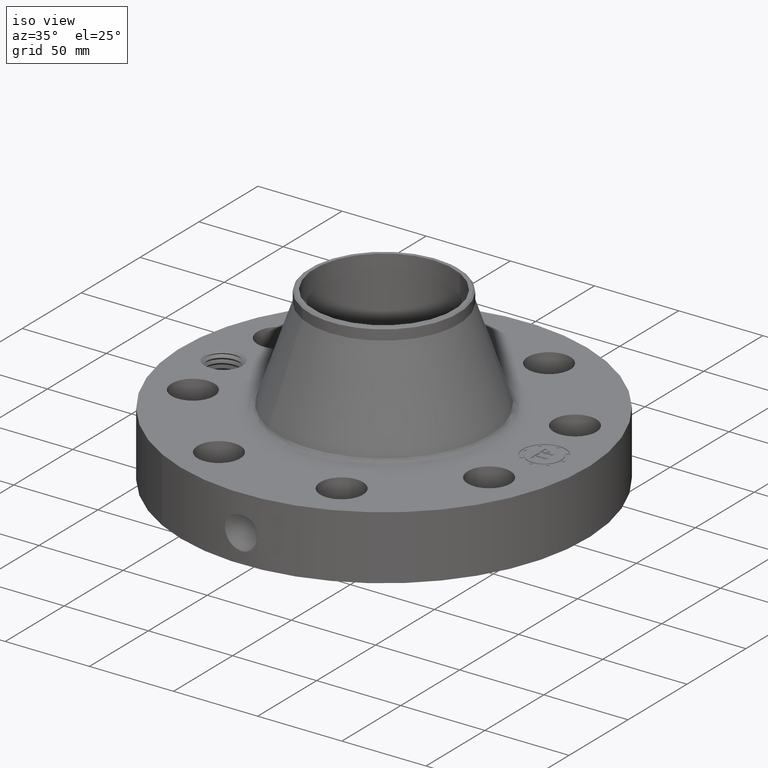
[diagram: clean part render]
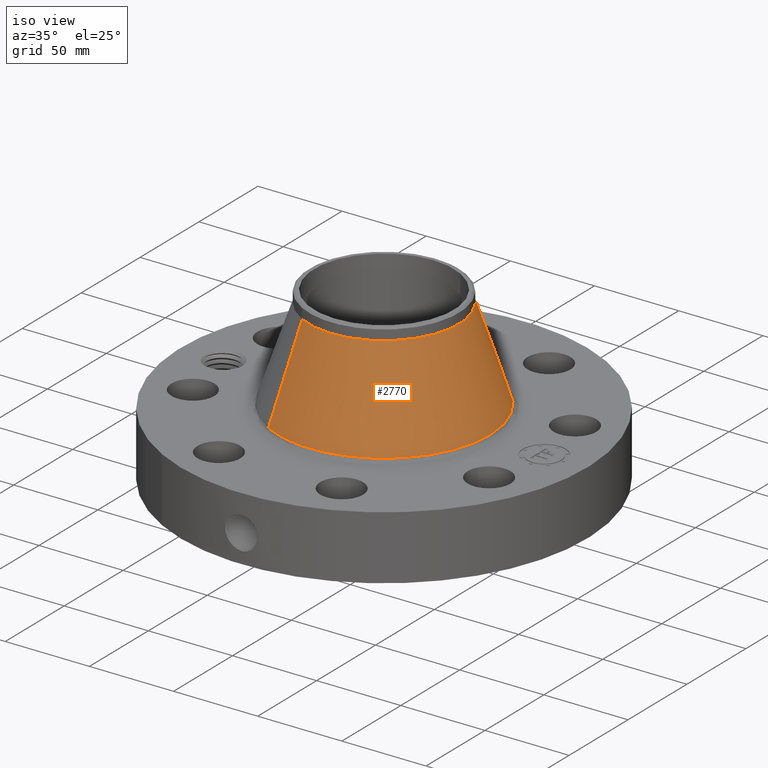
[diagram: same view with one face highlighted and labeled with its STEP entity id]
A machine part, iso view. The second image highlights one B-rep face of the part: STEP entity #2770.
In plain terms, the highlighted conical surface has half-angle 18.573 deg.
Its self-contained STEP definition (entity closure, byte-faithful):
#2052=AXIS2_PLACEMENT_3D('Circle Axis2P3D',#2050,#2051,$) ;
#2743=AXIS2_PLACEMENT_3D('Cone Axis2P3D',#2740,#2741,#2742) ;
#2754=AXIS2_PLACEMENT_3D('Circle Axis2P3D',#2752,#2753,$) ;
#2047=CARTESIAN_POINT('Vertex',(1.18539011021,2.16984204218,1.83177941987)) ;
#2050=CARTESIAN_POINT('Axis2P3D Location',(0.,0.,1.83177941987)) ;
#2054=CARTESIAN_POINT('Vertex',(-1.18539011021,-2.16984204218,1.83177941987)) ;
#2740=CARTESIAN_POINT('Axis2P3D Location',(0.,0.,3.98211973689)) ;
#2745=CARTESIAN_POINT('Line Origine',(1.01219240139,1.85280576275,2.90694957838)) ;
#2749=CARTESIAN_POINT('Vertex',(0.838994692561,1.53576948331,3.98211973689)) ;
#2752=CARTESIAN_POINT('Axis2P3D Location',(0.,0.,3.98211973689)) ;
#2756=CARTESIAN_POINT('Vertex',(-0.838994692561,-1.53576948331,3.98211973689)) ;
#2759=CARTESIAN_POINT('Line Origine',(-1.01219240139,-1.85280576275,2.90694957838)) ;
#2051=DIRECTION('Axis2P3D Direction',(0.,0.,-0.0393700787402)) ;
#2741=DIRECTION('Axis2P3D Direction',(0.,0.,-0.0393700787402)) ;
#2742=DIRECTION('Axis2P3D XDirection',(-0.0188750212049,-0.0345504945626,0.)) ;
#2746=DIRECTION('Vector Direction',(0.0060117855044,0.0110044995514,-0.0373197337166)) ;
#2753=DIRECTION('Axis2P3D Direction',(0.,0.,-0.0393700787402)) ;
#2760=DIRECTION('Vector Direction',(-0.0060117855044,-0.0110044995514,-0.0373197337166)) ;
#2747=VECTOR('Line Direction',#2746,0.0393700787402) ;
#2761=VECTOR('Line Direction',#2760,0.0393700787402) ;
#2765=ORIENTED_EDGE('',*,*,#2056,.F.) ;
#2766=ORIENTED_EDGE('',*,*,#2751,.T.) ;
#2767=ORIENTED_EDGE('',*,*,#2758,.T.) ;
#2768=ORIENTED_EDGE('',*,*,#2763,.F.) ;
#2770=ADVANCED_FACE('PartBody',(#2769),#2744,.T.) ;
#2053=CIRCLE('generated circle',#2052,2.47252183032) ;
#2755=CIRCLE('generated circle',#2754,1.75000000001) ;
#2744=CONICAL_SURFACE('Cone',#2743,1.75000000001,0.324151758563) ;
#2056=EDGE_CURVE('',#2048,#2055,#2053,.T.) ;
#2751=EDGE_CURVE('',#2048,#2750,#2748,.F.) ;
#2758=EDGE_CURVE('',#2750,#2757,#2755,.T.) ;
#2763=EDGE_CURVE('',#2055,#2757,#2762,.F.) ;
#2764=EDGE_LOOP('',(#2765,#2766,#2767,#2768)) ;
#2769=FACE_OUTER_BOUND('',#2764,.T.) ;
#2748=LINE('Line',#2745,#2747) ;
#2762=LINE('Line',#2759,#2761) ;
#2048=VERTEX_POINT('',#2047) ;
#2055=VERTEX_POINT('',#2054) ;
#2750=VERTEX_POINT('',#2749) ;
#2757=VERTEX_POINT('',#2756) ;